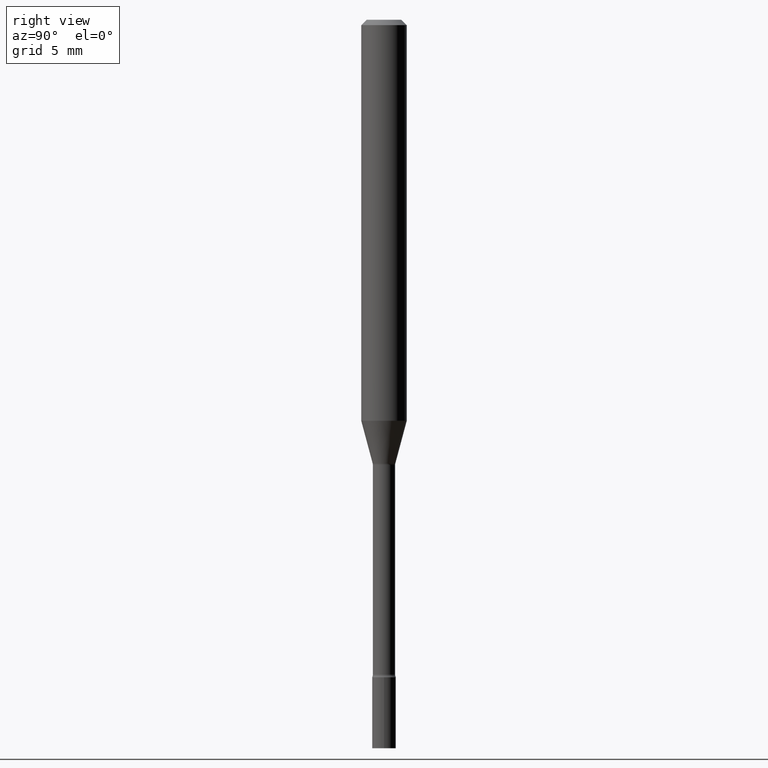
[diagram: clean part render]
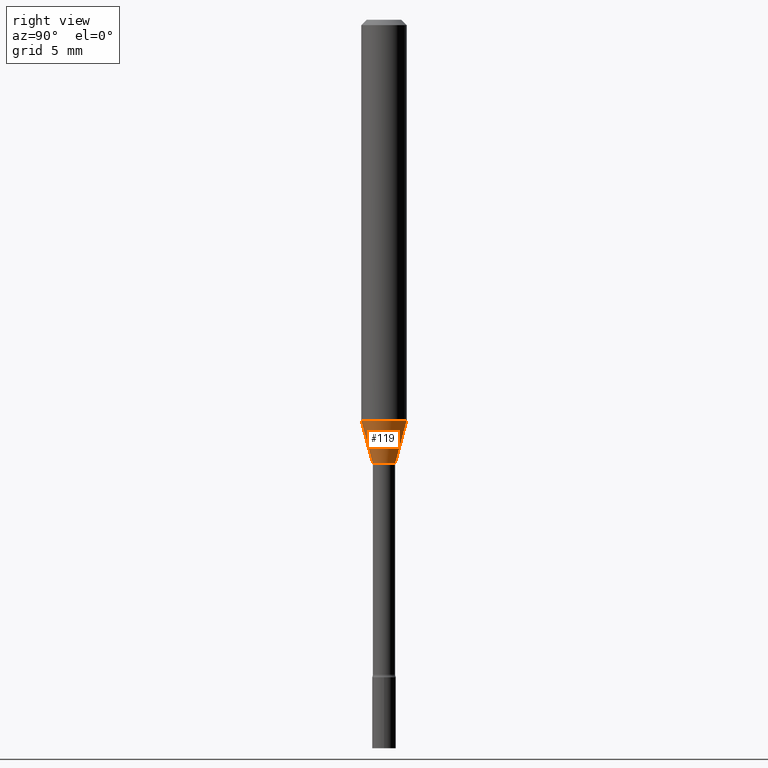
[diagram: same view with one face highlighted and labeled with its STEP entity id]
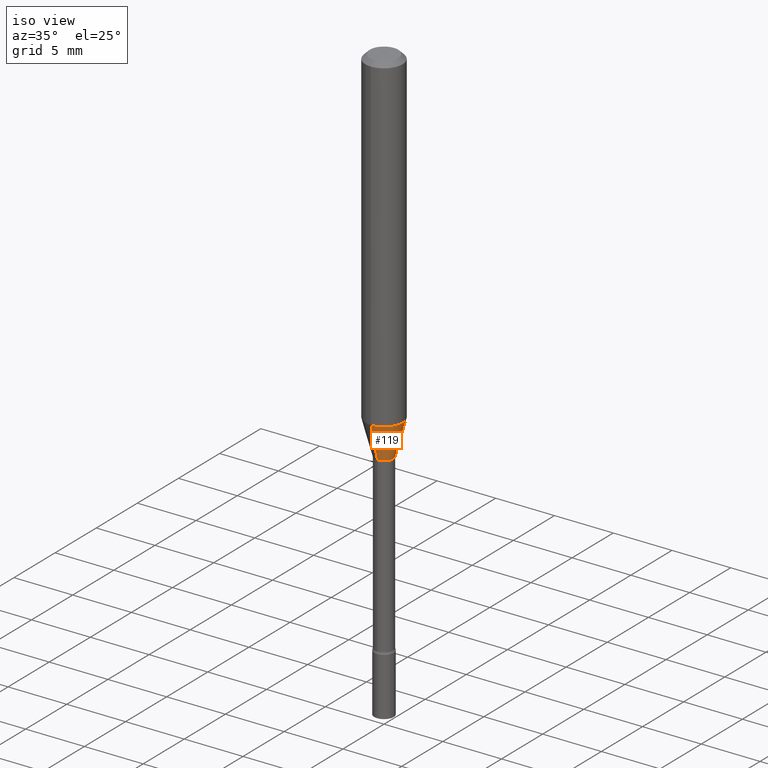
[diagram: same view with one face highlighted and labeled with its STEP entity id]
A machine part, right view. The second image highlights one B-rep face of the part: STEP entity #119.
A second angle (iso view) of the same face is appended — the face is thin or edge-on in the first view.
In plain terms, the highlighted conical surface has half-angle 15 deg.
Its self-contained STEP definition (entity closure, byte-faithful):
#17 = LINE ( 'NONE', #62, #456 ) ;
#20 = AXIS2_PLACEMENT_3D ( 'NONE', #136, #445, #81 ) ;
#31 = EDGE_CURVE ( 'NONE', #194, #360, #96, .T. ) ;
#62 = CARTESIAN_POINT ( 'NONE',  ( 2.207024792658399811E-16, 0.03106111260565973600, -1.218092501787273019 ) ) ;
#64 = CARTESIAN_POINT ( 'NONE',  ( 3.323958445579647462E-16, 0.03106111260565973600, -1.218092501787273019 ) ) ;
#81 = DIRECTION ( 'NONE',  ( -6.982962677686265922E-15, -1.000000000000000000, 4.370956789862821150E-15 ) ) ;
#96 = CIRCLE ( 'NONE', #20, 0.06250000000000000000 ) ;
#104 = DIRECTION ( 'NONE',  ( -6.982962677686265922E-15, -1.000000000000000000, 4.397537249142375435E-15 ) ) ;
#114 = EDGE_CURVE ( 'NONE', #227, #194, #149, .T. ) ;
#119 = ADVANCED_FACE ( 'NONE', ( #507 ), #382, .T. ) ;
#131 = CIRCLE ( 'NONE', #233, 0.03106111260566398607 ) ;
#136 = CARTESIAN_POINT ( 'NONE',  ( 2.692248343706835071E-29, -3.842754095748081161E-15, -1.100760976698174520 ) ) ;
#146 = CARTESIAN_POINT ( 'NONE',  ( -2.168985900527322372E-16, -0.03106111260566823615, -1.218092501787272797 ) ) ;
#147 = DIRECTION ( 'NONE',  ( -2.445806492688777345E-29, 3.490997752550009973E-15, 1.000000000000000000 ) ) ;
#149 = LINE ( 'NONE', #146, #249 ) ;
#171 = ORIENTED_EDGE ( 'NONE', *, *, #31, .F. ) ;
#188 = DIRECTION ( 'NONE',  ( -1.807323732225328562E-15, -0.2588190451025179639, 0.9659258262890690894 ) ) ;
#193 = CARTESIAN_POINT ( 'NONE',  ( 2.979218549566828255E-29, -4.252358186137388202E-15, -1.218092501787273019 ) ) ;
#194 = VERTEX_POINT ( 'NONE', #300 ) ;
#200 = EDGE_CURVE ( 'NONE', #296, #360, #17, .T. ) ;
#210 = ORIENTED_EDGE ( 'NONE', *, *, #374, .T. ) ;
#218 = CARTESIAN_POINT ( 'NONE',  ( -2.168985900527322372E-16, -0.03106111260566823615, -1.218092501787272797 ) ) ;
#227 = VERTEX_POINT ( 'NONE', #218 ) ;
#233 = AXIS2_PLACEMENT_3D ( 'NONE', #193, #147, #441 ) ;
#235 = DIRECTION ( 'NONE',  ( -2.445806492688777345E-29, 3.490997752550009973E-15, 1.000000000000000000 ) ) ;
#249 = VECTOR ( 'NONE', #188, 39.37007874015748854 ) ;
#276 = CARTESIAN_POINT ( 'NONE',  ( 4.440892098500895360E-16, 0.06249999999999617667, -1.100760976698174742 ) ) ;
#296 = VERTEX_POINT ( 'NONE', #64 ) ;
#300 = CARTESIAN_POINT ( 'NONE',  ( -4.364351673553646016E-16, -0.06250000000000383027, -1.100760976698174298 ) ) ;
#339 = ORIENTED_EDGE ( 'NONE', *, *, #200, .T. ) ;
#341 = DIRECTION ( 'NONE',  ( 1.839019923739598738E-15, 0.2588190451025247363, 0.9659258262890673130 ) ) ;
#360 = VERTEX_POINT ( 'NONE', #276 ) ;
#368 = ORIENTED_EDGE ( 'NONE', *, *, #114, .F. ) ;
#370 = AXIS2_PLACEMENT_3D ( 'NONE', #391, #235, #104 ) ;
#373 = EDGE_LOOP ( 'NONE', ( #210, #339, #171, #368 ) ) ;
#374 = EDGE_CURVE ( 'NONE', #227, #296, #131, .T. ) ;
#382 = CONICAL_SURFACE ( 'NONE', #370, 0.03106111260566398607, 0.2617993877991500740 ) ;
#391 = CARTESIAN_POINT ( 'NONE',  ( 2.979218549566828255E-29, -4.252358186137388202E-15, -1.218092501787273019 ) ) ;
#441 = DIRECTION ( 'NONE',  ( -6.982962677686265922E-15, -1.000000000000000000, 4.397537249142375435E-15 ) ) ;
#445 = DIRECTION ( 'NONE',  ( -2.445806492688777345E-29, 3.490997752550009973E-15, 1.000000000000000000 ) ) ;
#456 = VECTOR ( 'NONE', #341, 39.37007874015748854 ) ;
#507 = FACE_OUTER_BOUND ( 'NONE', #373, .T. ) ;